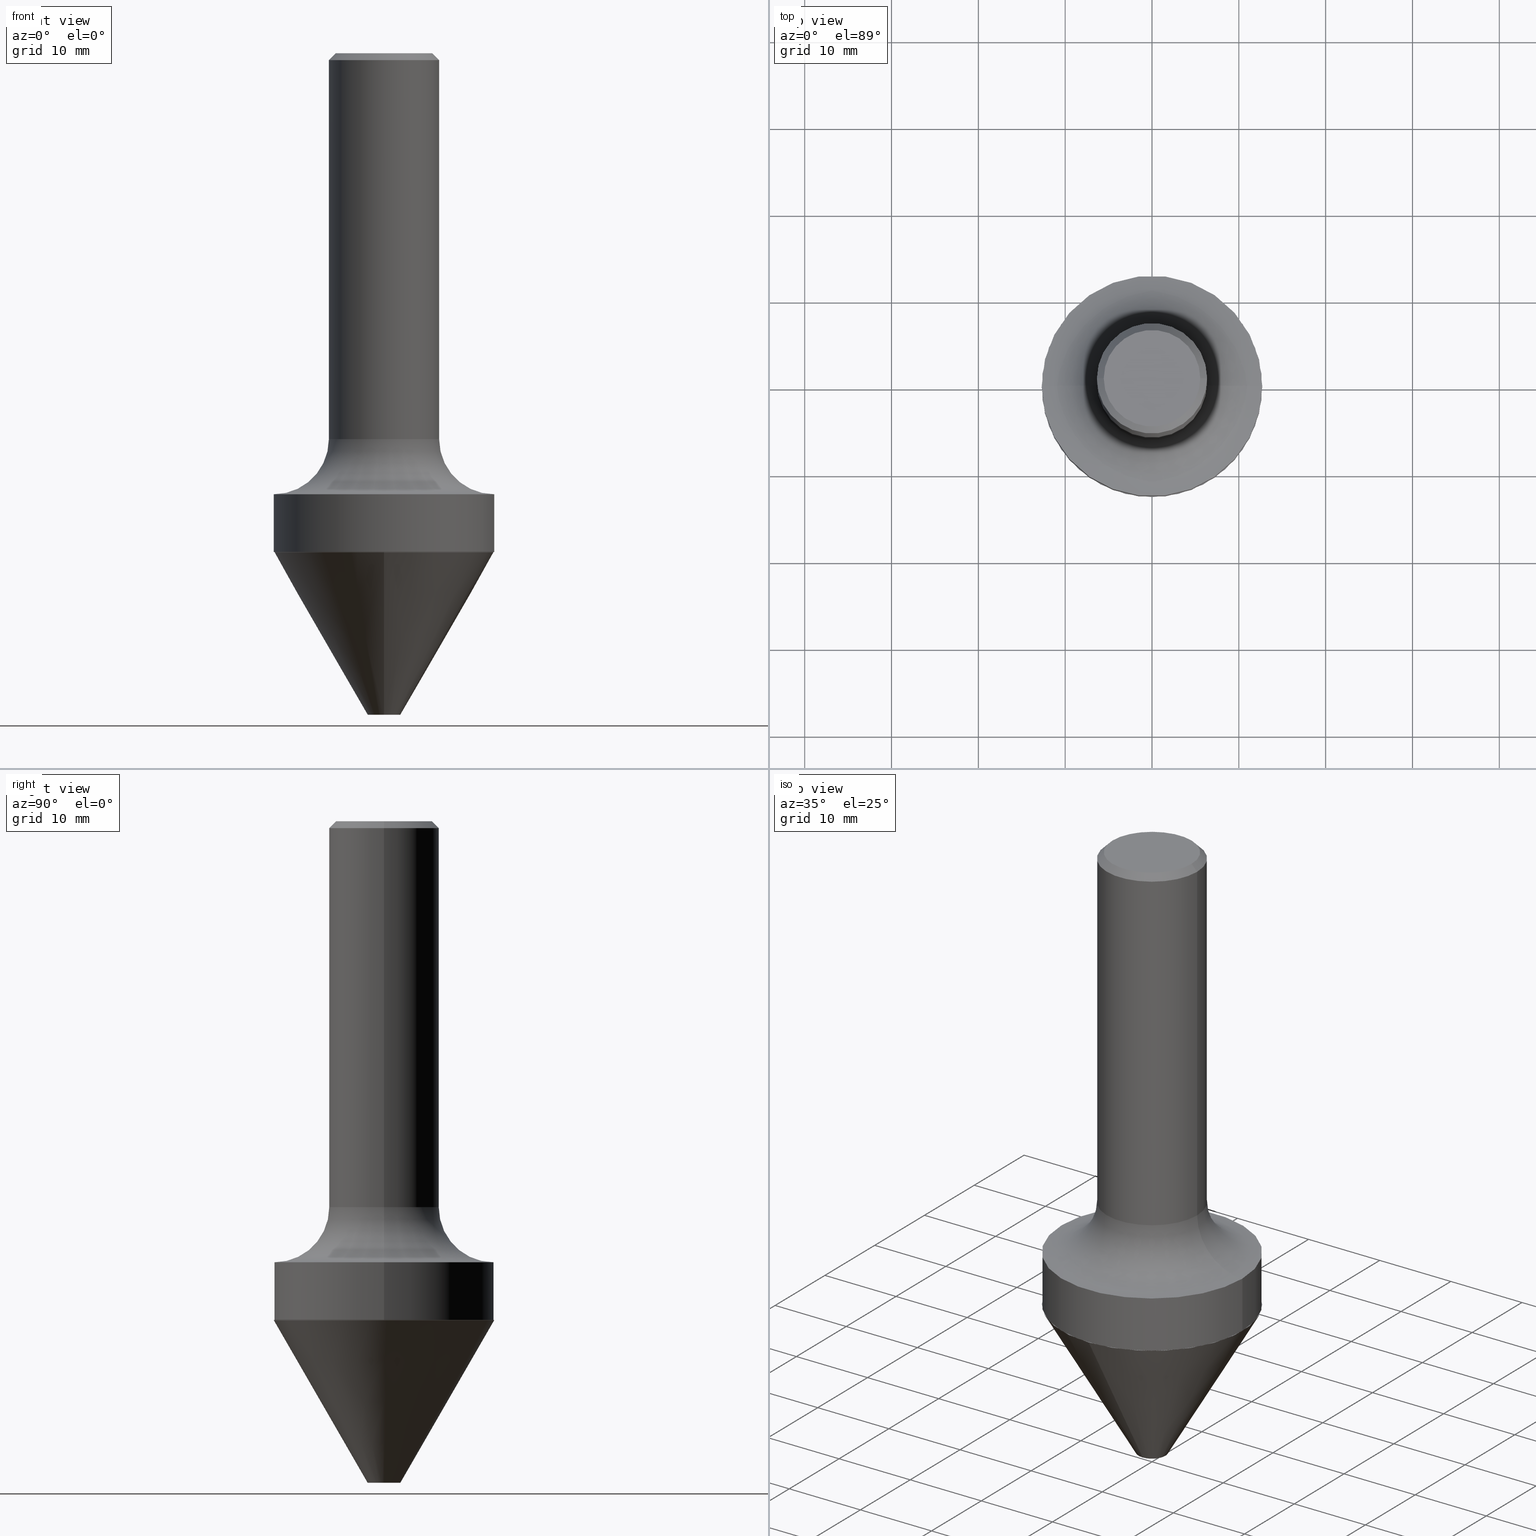
[diagram: canonical four-view strip — front | top / right | iso, engineering-drawing reading convention]
A machine part, canonical four-view strip (front | top / right | iso — engineering-drawing reading convention). The complete STEP part file that produces these views, byte-faithful:
ISO-10303-21;
HEADER;
FILE_DESCRIPTION (( 'STEP AP203' ),
    '1' );
FILE_NAME ('74146.STEP',
    '2025-06-20T12:29:17',
    ( '' ),
    ( '' ),
    'SwSTEP 2.0',
    'SolidWorks 2024',
    '' );
FILE_SCHEMA (( 'CONFIG_CONTROL_DESIGN' ));
ENDSEC;

DATA;
#1 = DIRECTION ( 'NONE',  ( -2.445468806185136597E-29, 3.491481338843145583E-15, 1.000000000000000000 ) ) ;
#2 = EDGE_CURVE ( 'NONE', #115, #273, #476, .T. ) ;
#3 = CARTESIAN_POINT ( 'NONE',  ( 7.348329163918454609E-29, -1.045736996656903780E-14, -3.000000000000000888 ) ) ;
#4 = DIRECTION ( 'NONE',  ( -2.445468806185136597E-29, 3.491481338843145583E-15, 1.000000000000000000 ) ) ;
#5 = AXIS2_PLACEMENT_3D ( 'NONE', #10, #98, #412 ) ;
#6 = DIRECTION ( 'NONE',  ( 2.523561818578368105E-29, -3.379647700317803682E-15, -1.000000000000000000 ) ) ;
#7 = VERTEX_POINT ( 'NONE', #391 ) ;
#8 = FACE_OUTER_BOUND ( 'NONE', #493, .T. ) ;
#9 = DIRECTION ( 'NONE',  ( -2.445468806185136597E-29, 3.491481338843145583E-15, 1.000000000000000000 ) ) ;
#10 = CARTESIAN_POINT ( 'NONE',  ( 5.530785614160922003E-29, -7.896496046951847326E-15, -2.261646355975725609 ) ) ;
#11 = CONICAL_SURFACE ( 'NONE', #509, 0.4999999999999999445, 0.5235987755983376735 ) ;
#12 = CC_DESIGN_DATE_AND_TIME_ASSIGNMENT ( #312, #181, ( #204 ) ) ;
#13 = AXIS2_PLACEMENT_3D ( 'NONE', #374, #94, #49 ) ;
#14 = AXIS2_PLACEMENT_3D ( 'NONE', #168, #165, #200 ) ;
#15 = CONICAL_SURFACE ( 'NONE', #86, 0.2500000000000000000, 0.7853981633974447263 ) ;
#16 = DIRECTION ( 'NONE',  ( 1.000000000000000000, -6.982962677686266711E-15, 0.000000000000000000 ) ) ;
#17 = EDGE_CURVE ( 'NONE', #145, #187, #36, .T. ) ;
#18 = PERSON_AND_ORGANIZATION_ROLE ( 'creator' ) ;
#19 = CARTESIAN_POINT ( 'NONE',  ( 5.485048099250590413E-29, -7.961994771521126325E-15, -2.261646355975725609 ) ) ;
#20 = MANIFOLD_SOLID_BREP ( 'Body-Move/Copy2[1]', #337 ) ;
#21 = CALENDAR_DATE ( 2025, 20, 6 ) ;
#22 = CARTESIAN_POINT ( 'NONE',  ( 5.485048099250590413E-29, -7.961994771521126325E-15, -2.261646355975725609 ) ) ;
#23 = CONICAL_SURFACE ( 'NONE', #101, 0.2500000000000000000, 0.7853981633974447263 ) ;
#24 = PERSON_AND_ORGANIZATION_ROLE ( 'creator' ) ;
#25 = ORIENTED_EDGE ( 'NONE', *, *, #208, .T. ) ;
#26 = CARTESIAN_POINT ( 'NONE',  ( 0.5000000000000000000, -1.047444401652942373E-14, -2.000000000000000444 ) ) ;
#27 = ORIENTED_EDGE ( 'NONE', *, *, #17, .T. ) ;
#28 = COORDINATED_UNIVERSAL_TIME_OFFSET ( 5, 0, .BEHIND. ) ;
#29 = DIRECTION ( 'NONE',  ( -6.982962677686265133E-15, -1.000000000000000000, 3.281499091488603347E-15 ) ) ;
#30 = APPLICATION_PROTOCOL_DEFINITION ( 'international standard', 'config_control_design', 1994, #50 ) ;
#31 = CC_DESIGN_PERSON_AND_ORGANIZATION_ASSIGNMENT ( #56, #73, ( #178 ) ) ;
#32 = VERTEX_POINT ( 'NONE', #199 ) ;
#33 = LOCAL_TIME ( 8, 29, 17.00000000000000000, #503 ) ;
#34 = AXIS2_PLACEMENT_3D ( 'NONE', #19, #482, #179 ) ;
#35 = DIRECTION ( 'NONE',  ( 1.000000000000000000, -6.982962677686266711E-15, 4.876319244907601817E-29 ) ) ;
#36 = LINE ( 'NONE', #202, #317 ) ;
#37 = DIRECTION ( 'NONE',  ( -2.445468806185136597E-29, 3.491481338843145583E-15, 1.000000000000000000 ) ) ;
#38 = DIRECTION ( 'NONE',  ( -2.445468806185136597E-29, 3.491481338843145583E-15, 1.000000000000000000 ) ) ;
#39 = VERTEX_POINT ( 'NONE', #82 ) ;
#40 = AXIS2_PLACEMENT_3D ( 'NONE', #397, #38, #166 ) ;
#41 = CARTESIAN_POINT ( 'NONE',  ( -0.5000000000000000000, 3.552713678800500929E-15, -2.459467545127452891E-29 ) ) ;
#42 = ORIENTED_EDGE ( 'NONE', *, *, #499, .F. ) ;
#43 = FACE_OUTER_BOUND ( 'NONE', #489, .T. ) ;
#44 = AXIS2_PLACEMENT_3D ( 'NONE', #368, #4, #450 ) ;
#45 = DIRECTION ( 'NONE',  ( -6.982962677686266711E-15, -1.000000000000000000, 3.491481338843145583E-15 ) ) ;
#46 = ORIENTED_EDGE ( 'NONE', *, *, #264, .T. ) ;
#47 = CARTESIAN_POINT ( 'NONE',  ( -0.5000000000000000000, -3.886142813183858353E-15, -2.261146355975725442 ) ) ;
#48 = PRODUCT_DEFINITION_FORMATION_WITH_SPECIFIED_SOURCE ( 'ANY', '', #178, .NOT_KNOWN. ) ;
#49 = DIRECTION ( 'NONE',  ( 1.000000000000000000, -6.982962677686266711E-15, 0.000000000000000000 ) ) ;
#50 = APPLICATION_CONTEXT ( 'configuration controlled 3d designs of mechanical parts and assemblies' ) ;
#51 = EDGE_CURVE ( 'NONE', #58, #128, #196, .T. ) ;
#52 = ADVANCED_FACE ( 'NONE', ( #439 ), #284, .T. ) ;
#53 = CARTESIAN_POINT ( 'NONE',  ( 0.4995000000000001106, -1.138448590445613925E-14, -2.261646355975725609 ) ) ;
#54 = LOCAL_TIME ( 8, 29, 17.00000000000000000, #28 ) ;
#55 = EDGE_CURVE ( 'NONE', #475, #32, #497, .T. ) ;
#56 = PERSON_AND_ORGANIZATION ( #222, #143 ) ;
#57 = CARTESIAN_POINT ( 'NONE',  ( -0.5000000000000000000, -2.557378664175005319E-15, -1.750000000000000444 ) ) ;
#58 = VERTEX_POINT ( 'NONE', #149 ) ;
#59 =( NAMED_UNIT ( * ) PLANE_ANGLE_UNIT ( ) SI_UNIT ( $, .RADIAN. ) );
#60 = CYLINDRICAL_SURFACE ( 'NONE', #44, 0.5000000000000000000 ) ;
#61 = EDGE_LOOP ( 'NONE', ( #406, #311, #234, #90 ) ) ;
#62 = AXIS2_PLACEMENT_3D ( 'NONE', #395, #37, #514 ) ;
#63 = UNCERTAINTY_MEASURE_WITH_UNIT (LENGTH_MEASURE( 1.000000000000000082E-05 ), #373, 'distance_accuracy_value', 'NONE');
#64 = PERSON_AND_ORGANIZATION ( #222, #143 ) ;
#65 = ORIENTED_EDGE ( 'NONE', *, *, #193, .F. ) ;
#66 = CARTESIAN_POINT ( 'NONE',  ( -0.4995000000000001106, -4.347335081830146506E-15, -2.261646355975725609 ) ) ;
#67 = AXIS2_PLACEMENT_3D ( 'NONE', #322, #238, #360 ) ;
#68 = ORIENTED_EDGE ( 'NONE', *, *, #298, .F. ) ;
#69 = APPROVAL_STATUS ( 'not_yet_approved' ) ;
#70 = ORIENTED_EDGE ( 'NONE', *, *, #381, .T. ) ;
#71 = ORIENTED_EDGE ( 'NONE', *, *, #315, .T. ) ;
#72 = CC_DESIGN_PERSON_AND_ORGANIZATION_ASSIGNMENT ( #64, #24, ( #48 ) ) ;
#73 = PERSON_AND_ORGANIZATION_ROLE ( 'design_owner' ) ;
#74 = EDGE_LOOP ( 'NONE', ( #133, #25, #224, #148 ) ) ;
#75 = DIRECTION ( 'NONE',  ( -6.982962677686266711E-15, -1.000000000000000000, 0.000000000000000000 ) ) ;
#76 = EDGE_CURVE ( 'NONE', #7, #472, #278, .T. ) ;
#77 = ORIENTED_EDGE ( 'NONE', *, *, #381, .F. ) ;
#78 = AXIS2_PLACEMENT_3D ( 'NONE', #494, #372, #16 ) ;
#79 = EDGE_CURVE ( 'NONE', #145, #58, #362, .T. ) ;
#80 = FACE_OUTER_BOUND ( 'NONE', #162, .T. ) ;
#81 = ORIENTED_EDGE ( 'NONE', *, *, #154, .F. ) ;
#82 = CARTESIAN_POINT ( 'NONE',  ( -0.2500000000000001665, -3.881992251230523010E-15, -1.750000000000000444 ) ) ;
#83 = ORIENTED_EDGE ( 'NONE', *, *, #423, .F. ) ;
#84 = CARTESIAN_POINT ( 'NONE',  ( 0.2500000000000000000, -1.824058717214789841E-15, -0.03120000000000021020 ) ) ;
#85 = DIRECTION ( 'NONE',  ( -1.000000000000000000, 6.982962677686265922E-15, -4.876176775795935793E-29 ) ) ;
#86 = AXIS2_PLACEMENT_3D ( 'NONE', #515, #159, #108 ) ;
#87 = DIRECTION ( 'NONE',  ( -2.523561818578368665E-29, 3.379647700317803682E-15, 1.000000000000000000 ) ) ;
#88 = CARTESIAN_POINT ( 'NONE',  ( -8.130938917284855507E-29, -3.262456288407752384E-14, -3.000000000000000888 ) ) ;
#89 = CARTESIAN_POINT ( 'NONE',  ( 0.2500000000000000000, -1.824058717214789841E-15, -0.03120000000000021020 ) ) ;
#90 = ORIENTED_EDGE ( 'NONE', *, *, #2, .F. ) ;
#91 = ORIENTED_EDGE ( 'NONE', *, *, #130, .T. ) ;
#92 = AXIS2_PLACEMENT_3D ( 'NONE', #223, #417, #212 ) ;
#93 = CLOSED_SHELL ( 'NONE', ( #185, #295, #335, #52, #461, #446, #131, #266, #175, #314, #483, #517 ) ) ;
#94 = DIRECTION ( 'NONE',  ( -2.445468806185136597E-29, 3.491481338843145583E-15, 1.000000000000000000 ) ) ;
#95 = EDGE_CURVE ( 'NONE', #387, #354, #306, .T. ) ;
#96 = ORIENTED_EDGE ( 'NONE', *, *, #2, .T. ) ;
#97 = APPROVAL_PERSON_ORGANIZATION ( #427, #221, #385 ) ;
#98 = DIRECTION ( 'NONE',  ( 2.523561818578368105E-29, -3.379647700317803682E-15, -1.000000000000000000 ) ) ;
#99 = CIRCLE ( 'NONE', #140, 0.2499999999999998057 ) ;
#100 = DIRECTION ( 'NONE',  ( 1.000000000000000000, -6.982962677686267499E-15, 4.876176775795935793E-29 ) ) ;
#101 = AXIS2_PLACEMENT_3D ( 'NONE', #452, #219, #366 ) ;
#102 = DIRECTION ( 'NONE',  ( -6.982962677686265922E-15, -1.000000000000000000, 3.278217592397116257E-15 ) ) ;
#103 = LENGTH_MEASURE_WITH_UNIT ( LENGTH_MEASURE( 0.02539999999999999897 ), #369 );
#104 = DIRECTION ( 'NONE',  ( 1.000000000000000000, -6.982962677686266711E-15, 0.000000000000000000 ) ) ;
#105 = VERTEX_POINT ( 'NONE', #192 ) ;
#106 = APPROVAL_DATE_TIME ( #463, #400 ) ;
#107 = VERTEX_POINT ( 'NONE', #275 ) ;
#108 = DIRECTION ( 'NONE',  ( -1.000000000000000000, 6.982962677686266711E-15, 0.000000000000000000 ) ) ;
#109 = AXIS2_PLACEMENT_3D ( 'NONE', #206, #203, #398 ) ;
#110 = CC_DESIGN_PERSON_AND_ORGANIZATION_ASSIGNMENT ( #339, #188, ( #48 ) ) ;
#111 = EDGE_LOOP ( 'NONE', ( #152, #408, #77, #420 ) ) ;
#112 = SECURITY_CLASSIFICATION_LEVEL ( 'unclassified' ) ;
#113 = DIRECTION ( 'NONE',  ( 4.937700262163874355E-15, 0.7071067811864485408, -0.7071067811866464936 ) ) ;
#114 = ADVANCED_FACE ( 'NONE', ( #320 ), #11, .T. ) ;
#115 = VERTEX_POINT ( 'NONE', #129 ) ;
#116 = CIRCLE ( 'NONE', #123, 0.4995000000000001661 ) ;
#117 = DIRECTION ( 'NONE',  ( -0.7071067811865450192, 2.468850131082230634E-15, -0.7071067811865500152 ) ) ;
#118 = AXIS2_PLACEMENT_3D ( 'NONE', #287, #442, #290 ) ;
#119 = AXIS2_PLACEMENT_3D ( 'NONE', #22, #299, #265 ) ;
#120 = LINE ( 'NONE', #205, #511 ) ;
#121 = ORIENTED_EDGE ( 'NONE', *, *, #208, .F. ) ;
#122 = ORIENTED_EDGE ( 'NONE', *, *, #55, .F. ) ;
#123 = AXIS2_PLACEMENT_3D ( 'NONE', #209, #292, #419 ) ;
#124 = ORIENTED_EDGE ( 'NONE', *, *, #384, .T. ) ;
#125 = CYLINDRICAL_SURFACE ( 'NONE', #297, 0.2500000000000000555 ) ;
#126 = CONICAL_SURFACE ( 'NONE', #415, 0.4999999999999999445, 0.5235987755983376735 ) ;
#127 = CARTESIAN_POINT ( 'NONE',  ( 0.2187999999999999945, -1.662567839563600480E-15, 7.654042494682104827E-18 ) ) ;
#128 = VERTEX_POINT ( 'NONE', #268 ) ;
#129 = CARTESIAN_POINT ( 'NONE',  ( -0.2187999999999999945, 1.582339342763707436E-15, 7.654042494660075270E-18 ) ) ;
#130 = EDGE_CURVE ( 'NONE', #107, #303, #422, .T. ) ;
#131 = ADVANCED_FACE ( 'NONE', ( #43 ), #60, .T. ) ;
#132 = LINE ( 'NONE', #490, #474 ) ;
#133 = ORIENTED_EDGE ( 'NONE', *, *, #367, .F. ) ;
#134 = DIRECTION ( 'NONE',  ( -2.523561818578368665E-29, 3.379647700317803682E-15, 1.000000000000000000 ) ) ;
#135 = AXIS2_PLACEMENT_3D ( 'NONE', #355, #516, #281 ) ;
#136 = DIRECTION ( 'NONE',  ( -2.445468806185136597E-29, 3.491481338843145583E-15, 1.000000000000000000 ) ) ;
#137 = AXIS2_PLACEMENT_3D ( 'NONE', #416, #262, #142 ) ;
#138 = PRODUCT_DEFINITION_SHAPE ( 'NONE', 'NONE',  #204 ) ;
#139 = CARTESIAN_POINT ( 'NONE',  ( 4.279570410823989605E-29, -6.110092342975506249E-15, -1.750000000000000444 ) ) ;
#140 = AXIS2_PLACEMENT_3D ( 'NONE', #57, #293, #255 ) ;
#141 = FACE_OUTER_BOUND ( 'NONE', #378, .T. ) ;
#142 = DIRECTION ( 'NONE',  ( 1.000000000000000000, 0.000000000000000000, 0.000000000000000000 ) ) ;
#143 = ORGANIZATION ( 'UNSPECIFIED', 'UNSPECIFIED', '' ) ;
#144 = LINE ( 'NONE', #363, #484 ) ;
#145 = VERTEX_POINT ( 'NONE', #186 ) ;
#146 = APPROVAL_ROLE ( '' ) ;
#147 = EDGE_CURVE ( 'NONE', #7, #303, #132, .T. ) ;
#148 = ORIENTED_EDGE ( 'NONE', *, *, #130, .F. ) ;
#149 = CARTESIAN_POINT ( 'NONE',  ( -3.428533874386268792E-15, -0.4995000000000081597, -2.261646355975723832 ) ) ;
#150 = PERSON_AND_ORGANIZATION ( #222, #143 ) ;
#151 = CIRCLE ( 'NONE', #456, 0.2500000000000001665 ) ;
#152 = ORIENTED_EDGE ( 'NONE', *, *, #282, .T. ) ;
#153 = ADVANCED_BREP_SHAPE_REPRESENTATION ( '74146', ( #20, #449, #137 ), #280 ) ;
#154 = EDGE_CURVE ( 'NONE', #58, #145, #116, .T. ) ;
#155 = COORDINATED_UNIVERSAL_TIME_OFFSET ( 5, 0, .BEHIND. ) ;
#156 = ORIENTED_EDGE ( 'NONE', *, *, #264, .F. ) ;
#157 = CARTESIAN_POINT ( 'NONE',  ( 5.529562879757829202E-29, -7.894750306282426611E-15, -2.261146355975725442 ) ) ;
#158 = DIRECTION ( 'NONE',  ( -6.982962677686266711E-15, -1.000000000000000000, 0.000000000000000000 ) ) ;
#159 = DIRECTION ( 'NONE',  ( 2.445468806185136597E-29, -3.491481338843145583E-15, -1.000000000000000000 ) ) ;
#160 = ORIENTED_EDGE ( 'NONE', *, *, #51, .T. ) ;
#161 = CARTESIAN_POINT ( 'NONE',  ( 5.486309880159878324E-29, -7.963684595371283721E-15, -2.262146355975725331 ) ) ;
#162 = EDGE_LOOP ( 'NONE', ( #430, #183, #316, #253 ) ) ;
#163 = DIRECTION ( 'NONE',  ( 0.7071067811865450192, -7.319954787623246579E-15, -0.7071067811865500152 ) ) ;
#164 = CC_DESIGN_APPROVAL ( #221, ( #443 ) ) ;
#165 = DIRECTION ( 'NONE',  ( -2.445468806185136597E-29, 3.491481338843145583E-15, 1.000000000000000000 ) ) ;
#166 = DIRECTION ( 'NONE',  ( 1.000000000000000000, -6.982962677686266711E-15, 4.876319244907601817E-29 ) ) ;
#167 = APPROVAL ( #305, 'UNSPECIFIED' ) ;
#168 = CARTESIAN_POINT ( 'NONE',  ( 5.530785614160922003E-29, -7.896496046951847326E-15, -2.261646355975725609 ) ) ;
#169 = CONICAL_SURFACE ( 'NONE', #34, 0.4995000000000001661, 0.7853981633973118326 ) ;
#170 = DIRECTION ( 'NONE',  ( 0.7071067811865474617, -2.468850131082256666E-15, 0.7071067811865474617 ) ) ;
#171 = AXIS2_PLACEMENT_3D ( 'NONE', #321, #1, #35 ) ;
#172 = ADVANCED_FACE ( 'NONE', ( #289 ), #302, .T. ) ;
#173 = ORIENTED_EDGE ( 'NONE', *, *, #499, .T. ) ;
#174 = DIRECTION ( 'NONE',  ( -2.445468806185136597E-29, 3.491481338843145583E-15, 1.000000000000000000 ) ) ;
#175 = ADVANCED_FACE ( 'NONE', ( #377 ), #250, .F. ) ;
#176 = LINE ( 'NONE', #460, #388 ) ;
#177 = LINE ( 'NONE', #215, #359 ) ;
#178 = PRODUCT ( '74146', '74146', '', ( #226 ) ) ;
#179 = DIRECTION ( 'NONE',  ( 6.982962677686265133E-15, 1.000000000000000000, -3.281499091488603347E-15 ) ) ;
#180 = CARTESIAN_POINT ( 'NONE',  ( 5.486309880159878324E-29, -7.963684595371283721E-15, -2.262146355975725331 ) ) ;
#181 = DATE_TIME_ROLE ( 'creation_date' ) ;
#182 = DIRECTION ( 'NONE',  ( -2.523561818578368665E-29, 3.379647700317803682E-15, 1.000000000000000000 ) ) ;
#183 = ORIENTED_EDGE ( 'NONE', *, *, #298, .T. ) ;
#184 = AXIS2_PLACEMENT_3D ( 'NONE', #401, #285, #245 ) ;
#185 = ADVANCED_FACE ( 'NONE', ( #455 ), #125, .T. ) ;
#186 = CARTESIAN_POINT ( 'NONE',  ( 3.489735598173767072E-15, 0.4994999999999921725, -2.261646355975726941 ) ) ;
#187 = VERTEX_POINT ( 'NONE', #447 ) ;
#188 = PERSON_AND_ORGANIZATION_ROLE ( 'design_supplier' ) ;
#189 = DIRECTION ( 'NONE',  ( -2.523561818578368665E-29, 3.379647700317803682E-15, 1.000000000000000000 ) ) ;
#190 = CALENDAR_DATE ( 2025, 20, 6 ) ;
#191 = ORIENTED_EDGE ( 'NONE', *, *, #147, .T. ) ;
#192 = CARTESIAN_POINT ( 'NONE',  ( -0.5000000000000000000, -3.430248998885791025E-15, -2.000000000000000444 ) ) ;
#193 = EDGE_CURVE ( 'NONE', #39, #273, #176, .T. ) ;
#194 = CALENDAR_DATE ( 2025, 20, 6 ) ;
#195 = CIRCLE ( 'NONE', #485, 0.4999999999999999445 ) ;
#196 = LINE ( 'NONE', #352, #376 ) ;
#197 = DIRECTION ( 'NONE',  ( 2.438088387897960049E-29, -3.491481338843145188E-15, -1.000000000000000000 ) ) ;
#198 = FACE_OUTER_BOUND ( 'NONE', #61, .T. ) ;
#199 = CARTESIAN_POINT ( 'NONE',  ( -0.4995000000000001106, -4.344685854656036094E-15, -2.261646355975725609 ) ) ;
#200 = DIRECTION ( 'NONE',  ( 1.000000000000000000, -6.982962677686267499E-15, 0.000000000000000000 ) ) ;
#201 = ORIENTED_EDGE ( 'NONE', *, *, #76, .T. ) ;
#202 = CARTESIAN_POINT ( 'NONE',  ( 3.487989857504345568E-15, 0.4994999999999921725, -2.261646355975726941 ) ) ;
#203 = DIRECTION ( 'NONE',  ( -2.445468806185136597E-29, 3.491481338843145583E-15, 1.000000000000000000 ) ) ;
#204 = PRODUCT_DEFINITION ( 'UNKNOWN', '', #48, #379 ) ;
#205 = CARTESIAN_POINT ( 'NONE',  ( -3.491481338843077741E-15, -0.5000000000000078826, -2.262146355975723555 ) ) ;
#206 = CARTESIAN_POINT ( 'NONE',  ( 5.530785614160922003E-29, -7.896496046951847326E-15, -2.261646355975725609 ) ) ;
#207 = CIRCLE ( 'NONE', #118, 0.5000000000000000000 ) ;
#208 = EDGE_CURVE ( 'NONE', #39, #105, #99, .T. ) ;
#209 = CARTESIAN_POINT ( 'NONE',  ( 5.485048099250590413E-29, -7.961994771521126325E-15, -2.261646355975725609 ) ) ;
#210 = FACE_OUTER_BOUND ( 'NONE', #74, .T. ) ;
#211 = VECTOR ( 'NONE', #117, 39.37007874015748143 ) ;
#212 = DIRECTION ( 'NONE',  ( 1.000000000000000000, -6.982962677686265922E-15, 4.876176775795935793E-29 ) ) ;
#213 = CIRCLE ( 'NONE', #40, 0.2187999999999999945 ) ;
#214 = CONICAL_SURFACE ( 'NONE', #309, 0.4995000000000001106, 0.7853981633974482790 ) ;
#215 = CARTESIAN_POINT ( 'NONE',  ( 3.552713678800554572E-15, 0.4999999999999919509, -2.262146355975727108 ) ) ;
#216 = EDGE_LOOP ( 'NONE', ( #426, #259 ) ) ;
#217 = DIRECTION ( 'NONE',  ( 1.000000000000000000, -6.982962677686268288E-15, 0.000000000000000000 ) ) ;
#218 = CYLINDRICAL_SURFACE ( 'NONE', #399, 0.2500000000000000555 ) ;
#219 = DIRECTION ( 'NONE',  ( 2.445468806185136597E-29, -3.491481338843145583E-15, -1.000000000000000000 ) ) ;
#220 = CIRCLE ( 'NONE', #409, 0.07400000000000006573 ) ;
#221 = APPROVAL ( #69, 'UNSPECIFIED' ) ;
#222 = PERSON ( 'UNSPECIFIED', 'UNSPECIFIED', 'UNSPECIFIED', ('UNSPECIFIED'), ('UNSPECIFIED'), ('UNSPECIFIED') ) ;
#223 = CARTESIAN_POINT ( 'NONE',  ( 5.530785614160922003E-29, -7.896496046951847326E-15, -2.261646355975725609 ) ) ;
#224 = ORIENTED_EDGE ( 'NONE', *, *, #332, .T. ) ;
#225 = EDGE_CURVE ( 'NONE', #354, #273, #227, .T. ) ;
#226 = MECHANICAL_CONTEXT ( 'NONE', #50, 'mechanical' ) ;
#227 = CIRCLE ( 'NONE', #13, 0.2500000000000000000 ) ;
#228 = CARTESIAN_POINT ( 'NONE',  ( 5.486309880159878324E-29, -7.963684595371283721E-15, -2.262146355975725331 ) ) ;
#229 = ORIENTED_EDGE ( 'NONE', *, *, #225, .F. ) ;
#230 = ORIENTED_EDGE ( 'NONE', *, *, #500, .T. ) ;
#231 = ORIENTED_EDGE ( 'NONE', *, *, #441, .F. ) ;
#232 = DIRECTION ( 'NONE',  ( -4.851104656540300843E-15, -0.7071067811864534258, -0.7071067811866416086 ) ) ;
#233 = PERSON_AND_ORGANIZATION ( #222, #143 ) ;
#234 = ORIENTED_EDGE ( 'NONE', *, *, #225, .T. ) ;
#235 = CIRCLE ( 'NONE', #256, 0.4999999999999999445 ) ;
#236 = AXIS2_PLACEMENT_3D ( 'NONE', #338, #501, #104 ) ;
#237 = ORIENTED_EDGE ( 'NONE', *, *, #441, .T. ) ;
#238 = DIRECTION ( 'NONE',  ( -2.445468806185136597E-29, 3.491481338843145583E-15, 1.000000000000000000 ) ) ;
#239 = FACE_OUTER_BOUND ( 'NONE', #435, .T. ) ;
#240 = ORIENTED_EDGE ( 'NONE', *, *, #193, .T. ) ;
#241 = DIRECTION ( 'NONE',  ( -2.445468806185136877E-29, 3.491481338843145188E-15, 1.000000000000000000 ) ) ;
#242 = ADVANCED_FACE ( 'NONE', ( #410 ), #169, .T. ) ;
#243 = EDGE_LOOP ( 'NONE', ( #124, #240, #229, #269 ) ) ;
#244 = EDGE_CURVE ( 'NONE', #475, #7, #144, .T. ) ;
#245 = DIRECTION ( 'NONE',  ( 1.000000000000000000, -6.982962677686265922E-15, 0.000000000000000000 ) ) ;
#246 = APPROVAL_PERSON_ORGANIZATION ( #267, #400, #146 ) ;
#247 = VECTOR ( 'NONE', #425, 39.37007874015748854 ) ;
#248 = DIRECTION ( 'NONE',  ( -6.982962677686265922E-15, -1.000000000000000000, 3.278217592397116257E-15 ) ) ;
#249 = ADVANCED_FACE ( 'NONE', ( #333 ), #126, .T. ) ;
#250 = PLANE ( 'NONE',  #92 ) ;
#251 = DIRECTION ( 'NONE',  ( -2.523561818578368665E-29, 3.379647700317803682E-15, 1.000000000000000000 ) ) ;
#252 = EDGE_LOOP ( 'NONE', ( #121, #445, #91, #46 ) ) ;
#253 = ORIENTED_EDGE ( 'NONE', *, *, #244, .F. ) ;
#254 = VERTEX_POINT ( 'NONE', #492 ) ;
#255 = DIRECTION ( 'NONE',  ( -1.000000000000000000, 7.105427357601001859E-15, 0.000000000000000000 ) ) ;
#256 = AXIS2_PLACEMENT_3D ( 'NONE', #161, #87, #248 ) ;
#257 = ORIENTED_EDGE ( 'NONE', *, *, #405, .T. ) ;
#258 = DIRECTION ( 'NONE',  ( 1.000000000000000000, -6.982962677686265922E-15, 4.883557194083112340E-29 ) ) ;
#259 = ORIENTED_EDGE ( 'NONE', *, *, #353, .T. ) ;
#260 = FACE_OUTER_BOUND ( 'NONE', #356, .T. ) ;
#261 = ADVANCED_FACE ( 'NONE', ( #141 ), #341, .T. ) ;
#262 = DIRECTION ( 'NONE',  ( 0.000000000000000000, 0.000000000000000000, 1.000000000000000000 ) ) ;
#263 = AXIS2_PLACEMENT_3D ( 'NONE', #139, #174, #258 ) ;
#264 = EDGE_CURVE ( 'NONE', #303, #105, #457, .T. ) ;
#265 = DIRECTION ( 'NONE',  ( 6.982962677686265133E-15, 1.000000000000000000, -3.281499091488603347E-15 ) ) ;
#266 = ADVANCED_FACE ( 'NONE', ( #239 ), #214, .T. ) ;
#267 = PERSON_AND_ORGANIZATION ( #222, #143 ) ;
#268 = CARTESIAN_POINT ( 'NONE',  ( -3.491481338843077741E-15, -0.5000000000000078826, -2.262146355975723555 ) ) ;
#269 = ORIENTED_EDGE ( 'NONE', *, *, #315, .F. ) ;
#270 = LINE ( 'NONE', #66, #247 ) ;
#271 = APPROVAL_ROLE ( '' ) ;
#272 = LOCAL_TIME ( 8, 29, 17.00000000000000000, #459 ) ;
#273 = VERTEX_POINT ( 'NONE', #389 ) ;
#274 = DIRECTION ( 'NONE',  ( 1.000000000000000000, -6.982962677686267499E-15, 0.000000000000000000 ) ) ;
#275 = CARTESIAN_POINT ( 'NONE',  ( 0.2500000000000001665, -7.855833012397073715E-15, -1.750000000000000444 ) ) ;
#276 = CARTESIAN_POINT ( 'NONE',  ( 5.530785614160922003E-29, -7.896496046951847326E-15, -2.261646355975725609 ) ) ;
#277 = CARTESIAN_POINT ( 'NONE',  ( 5.485048099250590413E-29, -7.961994771521126325E-15, -2.261646355975725609 ) ) ;
#278 = CIRCLE ( 'NONE', #424, 0.5000000000000000000 ) ;
#279 = DIRECTION ( 'NONE',  ( -2.445468806185136597E-29, 3.491481338843145583E-15, 1.000000000000000000 ) ) ;
#280 =( GEOMETRIC_REPRESENTATION_CONTEXT ( 3 ) GLOBAL_UNCERTAINTY_ASSIGNED_CONTEXT ( ( #63 ) ) GLOBAL_UNIT_ASSIGNED_CONTEXT ( ( #373, #59, #432 ) ) REPRESENTATION_CONTEXT ( 'NONE', 'WORKASPACE' ) );
#281 = DIRECTION ( 'NONE',  ( 1.000000000000000000, -6.982962677686266711E-15, 4.876176775795935793E-29 ) ) ;
#282 = EDGE_CURVE ( 'NONE', #254, #478, #467, .T. ) ;
#283 = SHAPE_DEFINITION_REPRESENTATION ( #138, #153 ) ;
#284 = CYLINDRICAL_SURFACE ( 'NONE', #135, 0.5000000000000000000 ) ;
#285 = DIRECTION ( 'NONE',  ( -2.445468806185136597E-29, 3.491481338843145583E-15, 1.000000000000000000 ) ) ;
#286 = CARTESIAN_POINT ( 'NONE',  ( 1.527872233877754946E-15, 0.2187999999999999945, -7.601090956915447608E-16 ) ) ;
#287 = CARTESIAN_POINT ( 'NONE',  ( 4.890937612370273754E-29, -6.982962677686291954E-15, -2.000000000000000444 ) ) ;
#288 = CIRCLE ( 'NONE', #184, 0.2500000000000001665 ) ;
#289 = FACE_OUTER_BOUND ( 'NONE', #507, .T. ) ;
#290 = DIRECTION ( 'NONE',  ( 1.000000000000000000, -6.982962677686266711E-15, 0.000000000000000000 ) ) ;
#291 = ORIENTED_EDGE ( 'NONE', *, *, #403, .T. ) ;
#292 = DIRECTION ( 'NONE',  ( -2.523561818578368665E-29, 3.379647700317803682E-15, 1.000000000000000000 ) ) ;
#293 = DIRECTION ( 'NONE',  ( 7.105427357601001859E-15, 1.000000000000000000, -3.491481338843145583E-15 ) ) ;
#294 = FACE_OUTER_BOUND ( 'NONE', #504, .T. ) ;
#295 = ADVANCED_FACE ( 'NONE', ( #198 ), #15, .T. ) ;
#296 = DIRECTION ( 'NONE',  ( 3.552713678800716288E-15, 0.5000000000000364153, 0.8660254037844175024 ) ) ;
#297 = AXIS2_PLACEMENT_3D ( 'NONE', #487, #9, #402 ) ;
#298 = EDGE_CURVE ( 'NONE', #32, #472, #270, .T. ) ;
#299 = DIRECTION ( 'NONE',  ( 2.523561818578368665E-29, -3.379647700317803682E-15, -1.000000000000000000 ) ) ;
#300 = PERSON_AND_ORGANIZATION ( #222, #143 ) ;
#301 = VECTOR ( 'NONE', #477, 39.37007874015748143 ) ;
#302 = PLANE ( 'NONE',  #413 ) ;
#303 = VERTEX_POINT ( 'NONE', #26 ) ;
#304 = ORIENTED_EDGE ( 'NONE', *, *, #154, .T. ) ;
#305 = APPROVAL_STATUS ( 'not_yet_approved' ) ;
#306 = LINE ( 'NONE', #84, #323 ) ;
#307 = PERSON_AND_ORGANIZATION_ROLE ( 'classification_officer' ) ;
#308 = CC_DESIGN_APPROVAL ( #400, ( #204 ) ) ;
#309 = AXIS2_PLACEMENT_3D ( 'NONE', #276, #386, #274 ) ;
#310 = CC_DESIGN_PERSON_AND_ORGANIZATION_ASSIGNMENT ( #233, #307, ( #443 ) ) ;
#311 = ORIENTED_EDGE ( 'NONE', *, *, #95, .T. ) ;
#312 = DATE_AND_TIME ( #498, #436 ) ;
#313 = DIRECTION ( 'NONE',  ( -2.445468806185136597E-29, 3.491481338843145583E-15, 1.000000000000000000 ) ) ;
#314 = ADVANCED_FACE ( 'NONE', ( #345 ), #358, .F. ) ;
#315 = EDGE_CURVE ( 'NONE', #107, #354, #440, .T. ) ;
#316 = ORIENTED_EDGE ( 'NONE', *, *, #76, .F. ) ;
#317 = VECTOR ( 'NONE', #113, 39.37007874015748143 ) ;
#318 = CARTESIAN_POINT ( 'NONE',  ( 4.279570410823989605E-29, -6.110092342975506249E-15, -1.750000000000000444 ) ) ;
#319 = CC_DESIGN_APPROVAL ( #167, ( #48 ) ) ;
#320 = FACE_OUTER_BOUND ( 'NONE', #111, .T. ) ;
#321 = CARTESIAN_POINT ( 'NONE',  ( -1.871772216193327269E-46, 2.672394653685605698E-32, 7.654042494670949841E-18 ) ) ;
#322 = CARTESIAN_POINT ( 'NONE',  ( 7.629862675297678326E-31, -1.089342177719068763E-16, -0.03120000000000021020 ) ) ;
#323 = VECTOR ( 'NONE', #163, 39.37007874015748143 ) ;
#324 = CARTESIAN_POINT ( 'NONE',  ( 0.2500000000000000555, -1.745740669421567269E-15, 1.219044193948984228E-29 ) ) ;
#325 = ORIENTED_EDGE ( 'NONE', *, *, #17, .F. ) ;
#326 = AXIS2_PLACEMENT_3D ( 'NONE', #329, #407, #488 ) ;
#327 = DIRECTION ( 'NONE',  ( 6.982962677686265922E-15, 1.000000000000000000, -3.379647700317803682E-15 ) ) ;
#328 = ORIENTED_EDGE ( 'NONE', *, *, #244, .T. ) ;
#329 = CARTESIAN_POINT ( 'NONE',  ( 4.279570410823989605E-29, -6.110092342975506249E-15, -1.750000000000000444 ) ) ;
#330 = DIRECTION ( 'NONE',  ( -2.445468806185136877E-29, 3.491481338843145188E-15, 1.000000000000000000 ) ) ;
#331 = CARTESIAN_POINT ( 'NONE',  ( 2.039257651631553242E-15, 0.07399999999998961575, -3.000000000000000888 ) ) ;
#332 = EDGE_CURVE ( 'NONE', #105, #303, #207, .T. ) ;
#333 = FACE_OUTER_BOUND ( 'NONE', #342, .T. ) ;
#334 = ORIENTED_EDGE ( 'NONE', *, *, #423, .T. ) ;
#335 = ADVANCED_FACE ( 'NONE', ( #80 ), #340, .T. ) ;
#336 = DIRECTION ( 'NONE',  ( -6.982962677686265922E-15, -1.000000000000000000, 3.278217592397116257E-15 ) ) ;
#337 = CLOSED_SHELL ( 'NONE', ( #242, #114, #495, #172, #249, #261 ) ) ;
#338 = CARTESIAN_POINT ( 'NONE',  ( 4.890937612370273754E-29, -6.982962677686291954E-15, -2.000000000000000444 ) ) ;
#339 = PERSON_AND_ORGANIZATION ( #222, #143 ) ;
#340 = CONICAL_SURFACE ( 'NONE', #14, 0.4995000000000001106, 0.7853981633974482790 ) ;
#341 = CONICAL_SURFACE ( 'NONE', #119, 0.4995000000000001661, 0.7853981633973118326 ) ;
#342 = EDGE_LOOP ( 'NONE', ( #506, #334, #465, #344 ) ) ;
#343 = DATE_AND_TIME ( #468, #33 ) ;
#344 = ORIENTED_EDGE ( 'NONE', *, *, #500, .F. ) ;
#345 = FACE_OUTER_BOUND ( 'NONE', #216, .T. ) ;
#346 = ORIENTED_EDGE ( 'NONE', *, *, #403, .F. ) ;
#347 = CC_DESIGN_DATE_AND_TIME_ASSIGNMENT ( #343, #505, ( #443 ) ) ;
#348 = AXIS2_PLACEMENT_3D ( 'NONE', #404, #45, #217 ) ;
#349 = EDGE_LOOP ( 'NONE', ( #201, #257, #156, #486 ) ) ;
#350 = DATE_AND_TIME ( #190, #54 ) ;
#351 = CC_DESIGN_SECURITY_CLASSIFICATION ( #443, ( #48 ) ) ;
#352 = CARTESIAN_POINT ( 'NONE',  ( -3.426818749886825840E-15, -0.4995000000000081597, -2.261646355975723832 ) ) ;
#353 = EDGE_CURVE ( 'NONE', #387, #115, #380, .T. ) ;
#354 = VERTEX_POINT ( 'NONE', #89 ) ;
#355 = CARTESIAN_POINT ( 'NONE',  ( 0.000000000000000000, 0.000000000000000000, 0.000000000000000000 ) ) ;
#356 = EDGE_LOOP ( 'NONE', ( #438, #383, #96, #237 ) ) ;
#357 = DIRECTION ( 'NONE',  ( 1.000000000000000000, -6.982962677686266711E-15, 0.000000000000000000 ) ) ;
#358 = PLANE ( 'NONE',  #371 ) ;
#359 = VECTOR ( 'NONE', #296, 39.37007874015748854 ) ;
#360 = DIRECTION ( 'NONE',  ( 1.000000000000000000, -6.982962677686266711E-15, 0.000000000000000000 ) ) ;
#361 = LINE ( 'NONE', #41, #301 ) ;
#362 = CIRCLE ( 'NONE', #464, 0.4995000000000001661 ) ;
#363 = CARTESIAN_POINT ( 'NONE',  ( 0.4995000000000001106, -1.138448590445613925E-14, -2.261646355975725609 ) ) ;
#364 = DIRECTION ( 'NONE',  ( -2.445468806185136877E-29, 3.491481338843145188E-15, 1.000000000000000000 ) ) ;
#365 = ORIENTED_EDGE ( 'NONE', *, *, #51, .F. ) ;
#366 = DIRECTION ( 'NONE',  ( -1.000000000000000000, 6.982962677686266711E-15, 0.000000000000000000 ) ) ;
#367 = EDGE_CURVE ( 'NONE', #39, #107, #151, .T. ) ;
#368 = CARTESIAN_POINT ( 'NONE',  ( 0.000000000000000000, 0.000000000000000000, 0.000000000000000000 ) ) ;
#369 =( LENGTH_UNIT ( ) NAMED_UNIT ( * ) SI_UNIT ( $, .METRE. ) );
#370 = CIRCLE ( 'NONE', #78, 0.5000000000000000000 ) ;
#371 = AXIS2_PLACEMENT_3D ( 'NONE', #286, #197, #85 ) ;
#372 = DIRECTION ( 'NONE',  ( -2.445468806185136597E-29, 3.491481338843145583E-15, 1.000000000000000000 ) ) ;
#373 =( CONVERSION_BASED_UNIT ( 'INCH', #103 ) LENGTH_UNIT ( ) NAMED_UNIT ( #458 ) );
#374 = CARTESIAN_POINT ( 'NONE',  ( 7.629862675297678326E-31, -1.089342177719068763E-16, -0.03120000000000021020 ) ) ;
#375 = COORDINATED_UNIVERSAL_TIME_OFFSET ( 5, 0, .BEHIND. ) ;
#376 = VECTOR ( 'NONE', #232, 39.37007874015748143 ) ;
#377 = FACE_OUTER_BOUND ( 'NONE', #513, .T. ) ;
#378 = EDGE_LOOP ( 'NONE', ( #365, #418, #27, #230 ) ) ;
#379 = DESIGN_CONTEXT ( 'detailed design', #429, 'design' ) ;
#380 = CIRCLE ( 'NONE', #171, 0.2187999999999999945 ) ;
#381 = EDGE_CURVE ( 'NONE', #128, #187, #235, .T. ) ;
#382 = CARTESIAN_POINT ( 'NONE',  ( 7.348329163918454609E-29, -1.045736996656903780E-14, -3.000000000000000888 ) ) ;
#383 = ORIENTED_EDGE ( 'NONE', *, *, #390, .F. ) ;
#384 = EDGE_CURVE ( 'NONE', #107, #39, #288, .T. ) ;
#385 = APPROVAL_ROLE ( '' ) ;
#386 = DIRECTION ( 'NONE',  ( -2.445468806185136597E-29, 3.491481338843145583E-15, 1.000000000000000000 ) ) ;
#387 = VERTEX_POINT ( 'NONE', #127 ) ;
#388 = VECTOR ( 'NONE', #330, 39.37007874015748143 ) ;
#389 = CARTESIAN_POINT ( 'NONE',  ( -0.2500000000000000000, 1.636806451649659727E-15, -0.03120000000000021020 ) ) ;
#390 = EDGE_CURVE ( 'NONE', #115, #387, #213, .T. ) ;
#391 = CARTESIAN_POINT ( 'NONE',  ( 0.5000000000000000000, -1.138623164512555997E-14, -2.261146355975725442 ) ) ;
#392 = TOROIDAL_SURFACE ( 'NONE', #326, 0.5000000000000000000, 0.2499999999999998057 ) ;
#393 = ORIENTED_EDGE ( 'NONE', *, *, #79, .T. ) ;
#394 = DIRECTION ( 'NONE',  ( 1.000000000000000000, -6.982962677686265922E-15, 0.000000000000000000 ) ) ;
#395 = CARTESIAN_POINT ( 'NONE',  ( 5.530785614160922003E-29, -7.896496046951847326E-15, -2.261646355975725609 ) ) ;
#396 = VECTOR ( 'NONE', #241, 39.37007874015748143 ) ;
#397 = CARTESIAN_POINT ( 'NONE',  ( -1.871772216193327269E-46, 2.672394653685605698E-32, 7.654042494670949841E-18 ) ) ;
#398 = DIRECTION ( 'NONE',  ( 1.000000000000000000, -6.982962677686267499E-15, 0.000000000000000000 ) ) ;
#399 = AXIS2_PLACEMENT_3D ( 'NONE', #496, #136, #100 ) ;
#400 = APPROVAL ( #462, 'UNSPECIFIED' ) ;
#401 = CARTESIAN_POINT ( 'NONE',  ( 4.279570410823989605E-29, -6.110092342975506249E-15, -1.750000000000000444 ) ) ;
#402 = DIRECTION ( 'NONE',  ( 1.000000000000000000, -6.982962677686267499E-15, 4.876176775795935793E-29 ) ) ;
#403 = EDGE_CURVE ( 'NONE', #32, #475, #451, .T. ) ;
#404 = CARTESIAN_POINT ( 'NONE',  ( 0.5000000000000000000, -9.601573681818638815E-15, -1.750000000000000444 ) ) ;
#405 = EDGE_CURVE ( 'NONE', #472, #105, #361, .T. ) ;
#406 = ORIENTED_EDGE ( 'NONE', *, *, #353, .F. ) ;
#407 = DIRECTION ( 'NONE',  ( -2.445468806185136597E-29, 3.491481338843145583E-15, 1.000000000000000000 ) ) ;
#408 = ORIENTED_EDGE ( 'NONE', *, *, #480, .T. ) ;
#409 = AXIS2_PLACEMENT_3D ( 'NONE', #3, #251, #158 ) ;
#410 = FACE_OUTER_BOUND ( 'NONE', #411, .T. ) ;
#411 = EDGE_LOOP ( 'NONE', ( #81, #160, #70, #325 ) ) ;
#412 = DIRECTION ( 'NONE',  ( 6.982962677686265922E-15, 1.000000000000000000, -3.379647700317803682E-15 ) ) ;
#413 = AXIS2_PLACEMENT_3D ( 'NONE', #88, #6, #327 ) ;
#414 = CIRCLE ( 'NONE', #67, 0.2500000000000000000 ) ;
#415 = AXIS2_PLACEMENT_3D ( 'NONE', #228, #182, #102 ) ;
#416 = CARTESIAN_POINT ( 'NONE',  ( 0.000000000000000000, 0.000000000000000000, 0.000000000000000000 ) ) ;
#417 = DIRECTION ( 'NONE',  ( -2.438088387897960049E-29, 3.491481338843145188E-15, 1.000000000000000000 ) ) ;
#418 = ORIENTED_EDGE ( 'NONE', *, *, #79, .F. ) ;
#419 = DIRECTION ( 'NONE',  ( -6.982962677686265133E-15, -1.000000000000000000, 3.281499091488603347E-15 ) ) ;
#420 = ORIENTED_EDGE ( 'NONE', *, *, #433, .F. ) ;
#421 = APPROVAL_DATE_TIME ( #470, #167 ) ;
#422 = CIRCLE ( 'NONE', #348, 0.2499999999999998057 ) ;
#423 = EDGE_CURVE ( 'NONE', #478, #254, #220, .T. ) ;
#424 = AXIS2_PLACEMENT_3D ( 'NONE', #157, #313, #357 ) ;
#425 = DIRECTION ( 'NONE',  ( -0.7071067811865474617, 7.493145998870352582E-15, 0.7071067811865474617 ) ) ;
#426 = ORIENTED_EDGE ( 'NONE', *, *, #390, .T. ) ;
#427 = PERSON_AND_ORGANIZATION ( #222, #143 ) ;
#428 = APPROVAL_PERSON_ORGANIZATION ( #300, #167, #271 ) ;
#429 = APPLICATION_CONTEXT ( 'configuration controlled 3d designs of mechanical parts and assemblies' ) ;
#430 = ORIENTED_EDGE ( 'NONE', *, *, #55, .T. ) ;
#431 = ORIENTED_EDGE ( 'NONE', *, *, #282, .F. ) ;
#432 =( NAMED_UNIT ( * ) SI_UNIT ( $, .STERADIAN. ) SOLID_ANGLE_UNIT ( ) );
#433 = EDGE_CURVE ( 'NONE', #254, #128, #120, .T. ) ;
#434 = CARTESIAN_POINT ( 'NONE',  ( 5.486309880159878324E-29, -7.963684595371283721E-15, -2.262146355975725331 ) ) ;
#435 = EDGE_LOOP ( 'NONE', ( #68, #291, #328, #42 ) ) ;
#436 = LOCAL_TIME ( 8, 29, 17.00000000000000000, #375 ) ;
#437 = AXIS2_PLACEMENT_3D ( 'NONE', #382, #471, #75 ) ;
#438 = ORIENTED_EDGE ( 'NONE', *, *, #95, .F. ) ;
#439 = FACE_OUTER_BOUND ( 'NONE', #349, .T. ) ;
#440 = LINE ( 'NONE', #324, #396 ) ;
#441 = EDGE_CURVE ( 'NONE', #273, #354, #414, .T. ) ;
#442 = DIRECTION ( 'NONE',  ( -2.445468806185136597E-29, 3.491481338843145583E-15, 1.000000000000000000 ) ) ;
#443 = SECURITY_CLASSIFICATION ( '', '', #112 ) ;
#444 = DIRECTION ( 'NONE',  ( -6.982962677686265922E-15, -1.000000000000000000, 3.278217592397116257E-15 ) ) ;
#445 = ORIENTED_EDGE ( 'NONE', *, *, #384, .F. ) ;
#446 = ADVANCED_FACE ( 'NONE', ( #454 ), #466, .F. ) ;
#447 = CARTESIAN_POINT ( 'NONE',  ( 3.552713678800554572E-15, 0.4999999999999919509, -2.262146355975727108 ) ) ;
#448 = ORIENTED_EDGE ( 'NONE', *, *, #405, .F. ) ;
#449 = MANIFOLD_SOLID_BREP ( 'Body-Move/Copy2[2]', #93 ) ;
#450 = DIRECTION ( 'NONE',  ( 1.000000000000000000, -6.982962677686266711E-15, 4.876176775795935793E-29 ) ) ;
#451 = CIRCLE ( 'NONE', #109, 0.4995000000000001106 ) ;
#452 = CARTESIAN_POINT ( 'NONE',  ( 7.629862675297678326E-31, -1.089342177719068763E-16, -0.03120000000000021020 ) ) ;
#453 = CC_DESIGN_PERSON_AND_ORGANIZATION_ASSIGNMENT ( #150, #18, ( #204 ) ) ;
#454 = FACE_OUTER_BOUND ( 'NONE', #252, .T. ) ;
#455 = FACE_OUTER_BOUND ( 'NONE', #243, .T. ) ;
#456 = AXIS2_PLACEMENT_3D ( 'NONE', #318, #279, #394 ) ;
#457 = CIRCLE ( 'NONE', #236, 0.5000000000000000000 ) ;
#458 = DIMENSIONAL_EXPONENTS ( 1.000000000000000000, 0.000000000000000000, 0.000000000000000000, 0.000000000000000000, 0.000000000000000000, 0.000000000000000000, 0.000000000000000000 ) ;
#459 = COORDINATED_UNIVERSAL_TIME_OFFSET ( 5, 0, .BEHIND. ) ;
#460 = CARTESIAN_POINT ( 'NONE',  ( -0.2500000000000000555, 1.776356839400250859E-15, -1.229733772563726866E-29 ) ) ;
#461 = ADVANCED_FACE ( 'NONE', ( #210 ), #392, .F. ) ;
#462 = APPROVAL_STATUS ( 'not_yet_approved' ) ;
#463 = DATE_AND_TIME ( #21, #502 ) ;
#464 = AXIS2_PLACEMENT_3D ( 'NONE', #277, #518, #29 ) ;
#465 = ORIENTED_EDGE ( 'NONE', *, *, #433, .T. ) ;
#466 = TOROIDAL_SURFACE ( 'NONE', #263, 0.5000000000000000000, 0.2499999999999998057 ) ;
#467 = CIRCLE ( 'NONE', #437, 0.07400000000000006573 ) ;
#468 = CALENDAR_DATE ( 2025, 20, 6 ) ;
#469 = ORIENTED_EDGE ( 'NONE', *, *, #367, .T. ) ;
#470 = DATE_AND_TIME ( #194, #272 ) ;
#471 = DIRECTION ( 'NONE',  ( -2.523561818578368665E-29, 3.379647700317803682E-15, 1.000000000000000000 ) ) ;
#472 = VERTEX_POINT ( 'NONE', #47 ) ;
#473 = DIRECTION ( 'NONE',  ( -3.491481338843389735E-15, -0.5000000000000307532, 0.8660254037844209440 ) ) ;
#474 = VECTOR ( 'NONE', #364, 39.37007874015748143 ) ;
#475 = VERTEX_POINT ( 'NONE', #53 ) ;
#476 = LINE ( 'NONE', #510, #211 ) ;
#477 = DIRECTION ( 'NONE',  ( -2.445468806185136877E-29, 3.491481338843145188E-15, 1.000000000000000000 ) ) ;
#478 = VERTEX_POINT ( 'NONE', #331 ) ;
#479 = ORIENTED_EDGE ( 'NONE', *, *, #332, .F. ) ;
#480 = EDGE_CURVE ( 'NONE', #478, #187, #177, .T. ) ;
#481 = PRODUCT_RELATED_PRODUCT_CATEGORY ( 'detail', '', ( #178 ) ) ;
#482 = DIRECTION ( 'NONE',  ( 2.523561818578368665E-29, -3.379647700317803682E-15, -1.000000000000000000 ) ) ;
#483 = ADVANCED_FACE ( 'NONE', ( #260 ), #23, .T. ) ;
#484 = VECTOR ( 'NONE', #170, 39.37007874015748854 ) ;
#485 = AXIS2_PLACEMENT_3D ( 'NONE', #180, #134, #336 ) ;
#486 = ORIENTED_EDGE ( 'NONE', *, *, #147, .F. ) ;
#487 = CARTESIAN_POINT ( 'NONE',  ( 0.000000000000000000, 0.000000000000000000, 0.000000000000000000 ) ) ;
#488 = DIRECTION ( 'NONE',  ( 1.000000000000000000, -6.982962677686265922E-15, 4.883557194083112340E-29 ) ) ;
#489 = EDGE_LOOP ( 'NONE', ( #448, #173, #191, #479 ) ) ;
#490 = CARTESIAN_POINT ( 'NONE',  ( 0.5000000000000000000, -3.491481338843133355E-15, 2.438088387897967896E-29 ) ) ;
#491 = PLANE ( 'NONE',  #5 ) ;
#492 = CARTESIAN_POINT ( 'NONE',  ( -5.167392381487107236E-16, -0.07400000000001052958, -3.000000000000000888 ) ) ;
#493 = EDGE_LOOP ( 'NONE', ( #393, #304 ) ) ;
#494 = CARTESIAN_POINT ( 'NONE',  ( 5.529562879757829202E-29, -7.894750306282426611E-15, -2.261146355975725442 ) ) ;
#495 = ADVANCED_FACE ( 'NONE', ( #8 ), #491, .F. ) ;
#496 = CARTESIAN_POINT ( 'NONE',  ( 0.000000000000000000, 0.000000000000000000, 0.000000000000000000 ) ) ;
#497 = CIRCLE ( 'NONE', #62, 0.4995000000000001106 ) ;
#498 = CALENDAR_DATE ( 2025, 20, 6 ) ;
#499 = EDGE_CURVE ( 'NONE', #472, #7, #370, .T. ) ;
#500 = EDGE_CURVE ( 'NONE', #187, #128, #195, .T. ) ;
#501 = DIRECTION ( 'NONE',  ( -2.445468806185136597E-29, 3.491481338843145583E-15, 1.000000000000000000 ) ) ;
#502 = LOCAL_TIME ( 8, 29, 17.00000000000000000, #155 ) ;
#503 = COORDINATED_UNIVERSAL_TIME_OFFSET ( 5, 0, .BEHIND. ) ;
#504 = EDGE_LOOP ( 'NONE', ( #65, #469, #71, #231 ) ) ;
#505 = DATE_TIME_ROLE ( 'classification_date' ) ;
#506 = ORIENTED_EDGE ( 'NONE', *, *, #480, .F. ) ;
#507 = EDGE_LOOP ( 'NONE', ( #431, #83 ) ) ;
#508 = APPLICATION_PROTOCOL_DEFINITION ( 'international standard', 'config_control_design', 1994, #429 ) ;
#509 = AXIS2_PLACEMENT_3D ( 'NONE', #434, #189, #444 ) ;
#510 = CARTESIAN_POINT ( 'NONE',  ( -0.2500000000000000000, 1.636806451649659727E-15, -0.03120000000000021020 ) ) ;
#511 = VECTOR ( 'NONE', #473, 39.37007874015748143 ) ;
#512 = APPROVAL_DATE_TIME ( #350, #221 ) ;
#513 = EDGE_LOOP ( 'NONE', ( #122, #346 ) ) ;
#514 = DIRECTION ( 'NONE',  ( 1.000000000000000000, -6.982962677686267499E-15, 0.000000000000000000 ) ) ;
#515 = CARTESIAN_POINT ( 'NONE',  ( 7.629862675297678326E-31, -1.089342177719068763E-16, -0.03120000000000021020 ) ) ;
#516 = DIRECTION ( 'NONE',  ( -2.445468806185136597E-29, 3.491481338843145583E-15, 1.000000000000000000 ) ) ;
#517 = ADVANCED_FACE ( 'NONE', ( #294 ), #218, .T. ) ;
#518 = DIRECTION ( 'NONE',  ( -2.523561818578368665E-29, 3.379647700317803682E-15, 1.000000000000000000 ) ) ;
ENDSEC;
END-ISO-10303-21;
